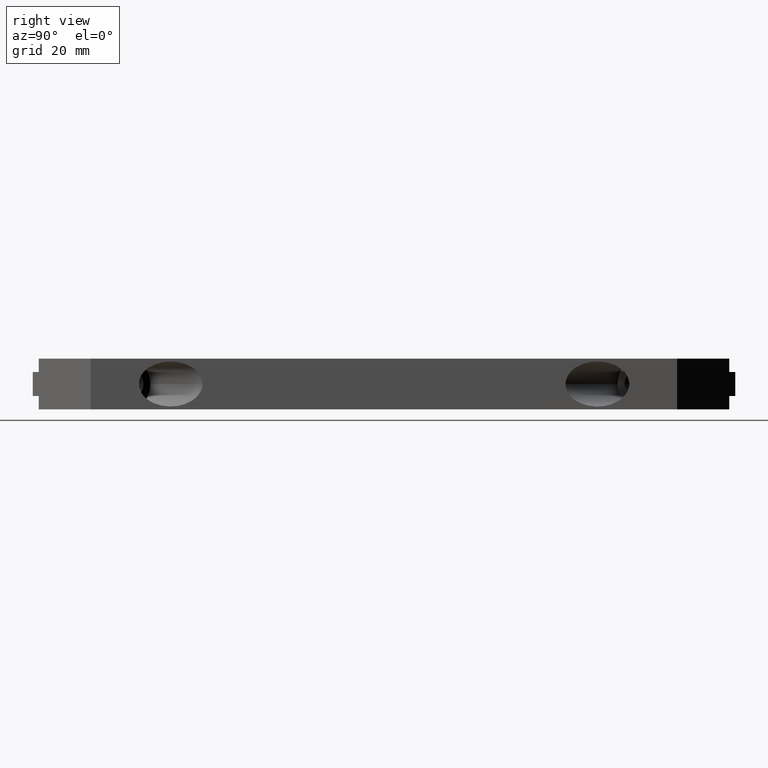
[diagram: clean part render]
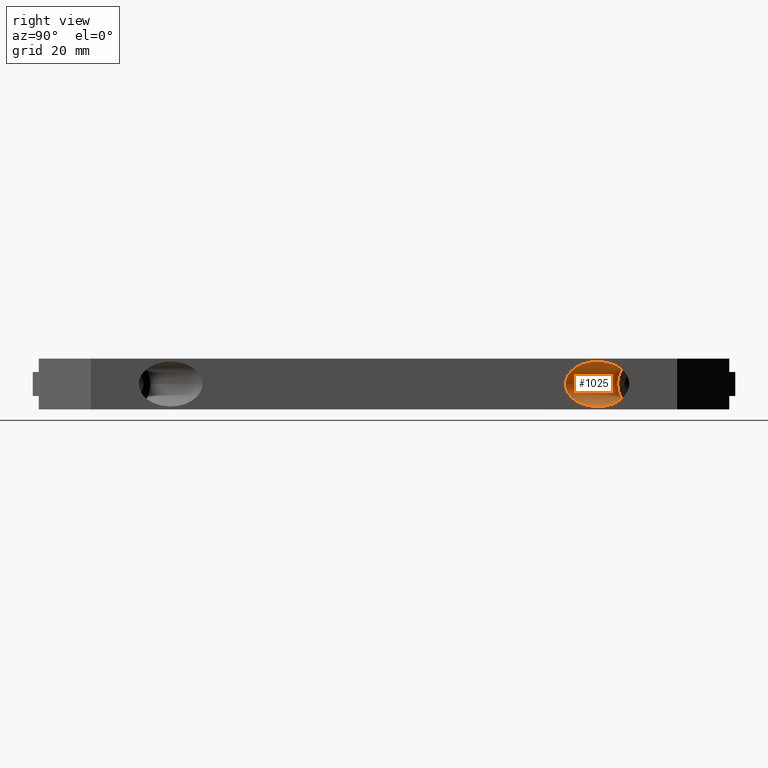
[diagram: same view with one face highlighted and labeled with its STEP entity id]
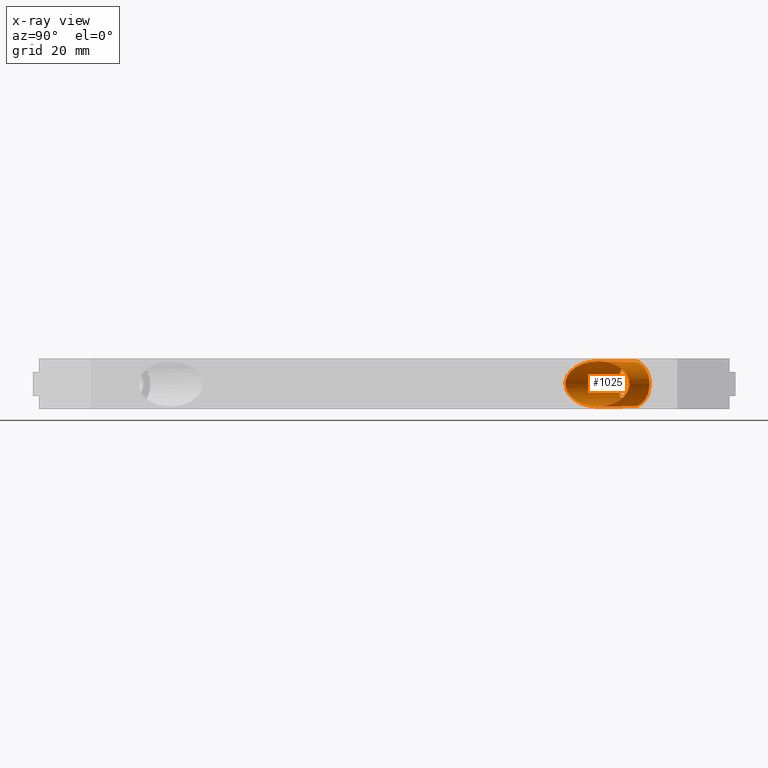
[diagram: x-ray of the same camera — body ghosted, the highlighted face saturated]
A machine part, right view. The second image highlights one B-rep face of the part: STEP entity #1025.
The next image is the same camera in x-ray: the body ghosted, the highlighted face saturated — about 0% of this face is hidden behind the body in this view.
In plain terms, the highlighted cylindrical surface (bore or boss wall) has radius 8 mm, axis along (-0.7071, 0.7071, 0).
Its self-contained STEP definition (entity closure, byte-faithful):
#41=CARTESIAN_POINT('',(69.999999999719904,87.029438061060603,9.0));
#42=VERTEX_POINT('',#41);
#43=CARTESIAN_POINT('',(69.999999999719904,64.402019999743459,9.0));
#44=VERTEX_POINT('',#43);
#45=CARTESIAN_POINT('',(69.999999999719904,75.715729030401292,9.0));
#46=DIRECTION('',(1.0,1.366428E-016,0.0));
#47=DIRECTION('',(1.366428E-016,-1.0,0.0));
#48=AXIS2_PLACEMENT_3D('',#45,#46,#47);
#49=ELLIPSE('',#48,11.313709030659313,8.000000375950680);
#50=EDGE_CURVE('',#42,#44,#49,.T.);
#52=CARTESIAN_POINT('',(69.999999999719904,75.715729030401292,9.0));
#53=DIRECTION('',(1.0,1.366428E-016,0.0));
#54=DIRECTION('',(1.366428E-016,-1.0,0.0));
#55=AXIS2_PLACEMENT_3D('',#52,#53,#54);
#56=ELLIPSE('',#55,11.313709030659313,8.000000375950680);
#57=EDGE_CURVE('',#44,#42,#56,.T.);
#982=CARTESIAN_POINT('',(62.813709030453225,94.215729030327282,9.0));
#983=VERTEX_POINT('',#982);
#984=CARTESIAN_POINT('',(51.499999999793914,82.902019999667971,9.0));
#985=VERTEX_POINT('',#984);
#986=CARTESIAN_POINT('',(57.156854515123570,88.558874514997626,9.0));
#987=DIRECTION('',(-0.707106781186548,0.707106781186548,0.0));
#988=DIRECTION('',(-0.707106781186548,-0.707106781186548,0.0));
#989=AXIS2_PLACEMENT_3D('',#986,#987,#988);
#990=CIRCLE('',#989,8.000000375950680);
#991=EDGE_CURVE('',#983,#985,#990,.T.);
#993=CARTESIAN_POINT('',(57.156854515123570,88.558874514997626,9.0));
#994=DIRECTION('',(-0.707106781186548,0.707106781186548,0.0));
#995=DIRECTION('',(-0.707106781186548,-0.707106781186548,0.0));
#996=AXIS2_PLACEMENT_3D('',#993,#994,#995);
#997=CIRCLE('',#996,8.000000375950680);
#998=EDGE_CURVE('',#985,#983,#997,.T.);
#1007=CARTESIAN_POINT('',(57.156854515123570,88.558874514997626,9.0));
#1008=DIRECTION('',(-0.707106781186548,0.707106781186548,0.0));
#1009=DIRECTION('',(-0.707106781186548,-0.707106781186548,0.0));
#1010=AXIS2_PLACEMENT_3D('',#1007,#1008,#1009);
#1011=CYLINDRICAL_SURFACE('',#1010,8.000000375950680);
#1012=ORIENTED_EDGE('',*,*,#998,.T.);
#1013=ORIENTED_EDGE('',*,*,#991,.T.);
#1014=CARTESIAN_POINT('',(51.499999999793914,82.902019999667971,9.0));
#1015=DIRECTION('',(0.707106781186576,-0.707106781186519,0.0));
#1016=VECTOR('',#1015,26.162950903796560);
#1017=LINE('',#1014,#1016);
#1018=EDGE_CURVE('',#985,#44,#1017,.T.);
#1019=ORIENTED_EDGE('',*,*,#1018,.T.);
#1020=ORIENTED_EDGE('',*,*,#57,.T.);
#1021=ORIENTED_EDGE('',*,*,#50,.T.);
#1022=ORIENTED_EDGE('',*,*,#1018,.F.);
#1023=EDGE_LOOP('',(#1012,#1013,#1019,#1020,#1021,#1022));
#1024=FACE_OUTER_BOUND('',#1023,.T.);
#1025=ADVANCED_FACE('',(#1024),#1011,.F.);